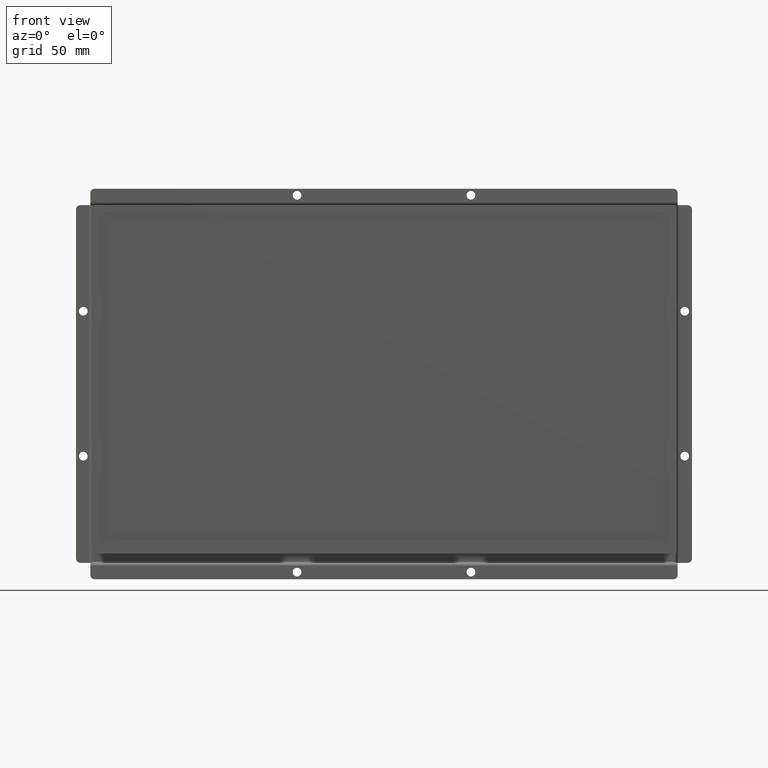
[diagram: clean part render]
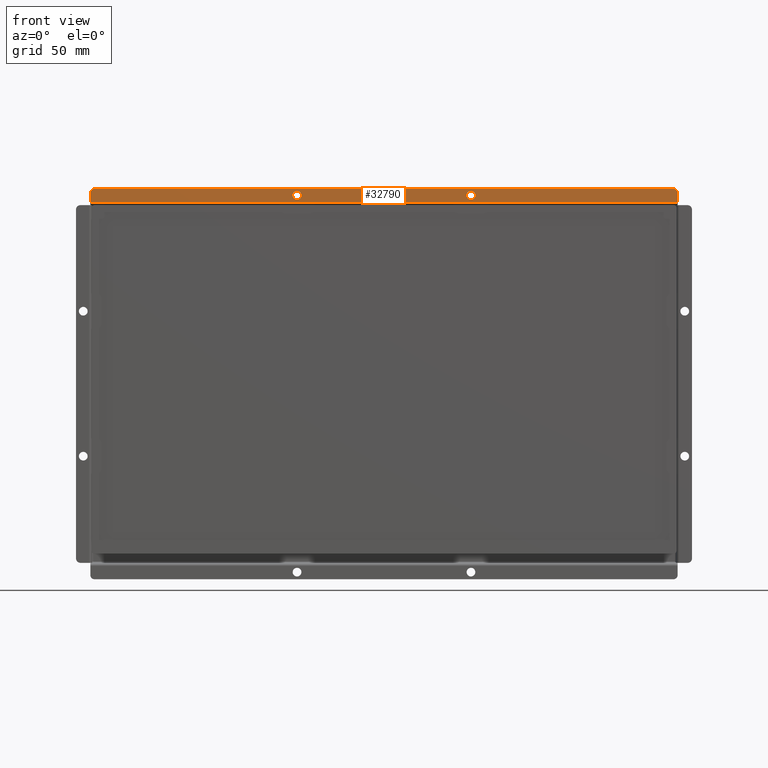
[diagram: same view with one face highlighted and labeled with its STEP entity id]
A machine part, front view. The second image highlights one B-rep face of the part: STEP entity #32790.
In plain terms, the highlighted planar face has unit normal (0, 1, 0).
Its self-contained STEP definition (entity closure, byte-faithful):
#1957=FACE_BOUND('',#5311,.T.);
#1958=FACE_BOUND('',#5312,.T.);
#2281=PLANE('',#35226);
#3445=FACE_OUTER_BOUND('',#5310,.T.);
#5310=EDGE_LOOP('',(#23200,#23201,#23202,#23203,#23204,#23205));
#5311=EDGE_LOOP('',(#23206));
#5312=EDGE_LOOP('',(#23207));
#7486=LINE('',#47799,#10625);
#7500=LINE('',#47838,#10639);
#7527=LINE('',#47913,#10666);
#7529=LINE('',#47920,#10668);
#10625=VECTOR('',#38565,10.);
#10639=VECTOR('',#38601,10.);
#10666=VECTOR('',#38672,10.);
#10668=VECTOR('',#38680,10.);
#13720=CIRCLE('',#35169,3.);
#13722=CIRCLE('',#35172,3.);
#13729=CIRCLE('',#35183,3.);
#13735=CIRCLE('',#35195,3.);
#15073=VERTEX_POINT('',#47758);
#15075=VERTEX_POINT('',#47764);
#15082=VERTEX_POINT('',#47786);
#15083=VERTEX_POINT('',#47787);
#15087=VERTEX_POINT('',#47797);
#15100=VERTEX_POINT('',#47832);
#15101=VERTEX_POINT('',#47836);
#15127=VERTEX_POINT('',#47912);
#18282=EDGE_CURVE('',#15073,#15073,#13720,.T.);
#18285=EDGE_CURVE('',#15075,#15075,#13722,.T.);
#18295=EDGE_CURVE('',#15082,#15083,#13729,.T.);
#18301=EDGE_CURVE('',#15087,#15082,#7486,.T.);
#18317=EDGE_CURVE('',#15100,#15087,#13735,.T.);
#18320=EDGE_CURVE('',#15101,#15100,#7500,.T.);
#18356=EDGE_CURVE('',#15101,#15127,#7527,.T.);
#18360=EDGE_CURVE('',#15083,#15127,#7529,.T.);
#23200=ORIENTED_EDGE('',*,*,#18295,.F.);
#23201=ORIENTED_EDGE('',*,*,#18301,.F.);
#23202=ORIENTED_EDGE('',*,*,#18317,.F.);
#23203=ORIENTED_EDGE('',*,*,#18320,.F.);
#23204=ORIENTED_EDGE('',*,*,#18356,.T.);
#23205=ORIENTED_EDGE('',*,*,#18360,.F.);
#23206=ORIENTED_EDGE('',*,*,#18282,.T.);
#23207=ORIENTED_EDGE('',*,*,#18285,.T.);
#32790=ADVANCED_FACE('',(#3445,#1957,#1958),#2281,.F.);
#35169=AXIS2_PLACEMENT_3D('',#47760,#38523,#38524);
#35172=AXIS2_PLACEMENT_3D('',#47766,#38530,#38531);
#35183=AXIS2_PLACEMENT_3D('',#47788,#38555,#38556);
#35195=AXIS2_PLACEMENT_3D('',#47833,#38595,#38596);
#35226=AXIS2_PLACEMENT_3D('',#47930,#38692,#38693);
#38523=DIRECTION('center_axis',(-3.82358215768453E-19,-8.33042914120485E-16,
1.));
#38524=DIRECTION('ref_axis',(1.,2.6863811902617E-33,3.82358215768478E-19));
#38530=DIRECTION('center_axis',(-3.82358215768453E-19,-8.33042914120485E-16,
1.));
#38531=DIRECTION('ref_axis',(1.,2.6863811902617E-33,3.82358215768478E-19));
#38555=DIRECTION('center_axis',(-3.82358215768453E-19,-8.33042914120485E-16,
1.));
#38556=DIRECTION('ref_axis',(-0.707106781186568,0.707106781186527,0.));
#38565=DIRECTION('',(-1.,3.82358215768419E-19,-3.82358215768422E-19));
#38595=DIRECTION('center_axis',(-3.82358215768453E-19,-8.33042914120485E-16,
1.));
#38596=DIRECTION('ref_axis',(0.707106781186556,0.707106781186539,0.));
#38601=DIRECTION('',(3.82358215768419E-19,1.,2.5034449420455E-16));
#38672=DIRECTION('',(-1.,3.82358215768419E-19,-3.82358215768453E-19));
#38680=DIRECTION('',(4.71189462560583E-14,-1.,-9.67330421331547E-16));
#38692=DIRECTION('center_axis',(-3.82358215768453E-19,-8.33042914120485E-16,
1.));
#38693=DIRECTION('ref_axis',(-3.82358215768419E-19,-1.,-8.33042914120485E-16));
#47758=CARTESIAN_POINT('',(-62.9999999999998,130.,-14.));
#47760=CARTESIAN_POINT('Origin',(-59.9999999999998,130.,-14.));
#47764=CARTESIAN_POINT('',(57.0000000000002,130.,-14.));
#47766=CARTESIAN_POINT('Origin',(60.0000000000002,130.,-14.));
#47786=CARTESIAN_POINT('',(-199.625,134.55,-14.));
#47787=CARTESIAN_POINT('',(-202.625,131.55,-14.));
#47788=CARTESIAN_POINT('Origin',(-199.625,131.55,-14.));
#47797=CARTESIAN_POINT('',(199.625,134.55,-14.));
#47799=CARTESIAN_POINT('',(202.625,134.55,-14.));
#47832=CARTESIAN_POINT('',(202.625,131.55,-14.));
#47833=CARTESIAN_POINT('Origin',(199.625,131.55,-14.));
#47836=CARTESIAN_POINT('',(202.625,125.3,-14.));
#47838=CARTESIAN_POINT('',(202.625,125.3,-14.));
#47912=CARTESIAN_POINT('',(-202.625,125.3,-14.));
#47913=CARTESIAN_POINT('',(6.24576922994804E-15,125.3,-14.));
#47920=CARTESIAN_POINT('',(-202.625,123.038053289415,-14.));
#47930=CARTESIAN_POINT('Origin',(1.24921097132583E-14,128.794026644708,
-14.));